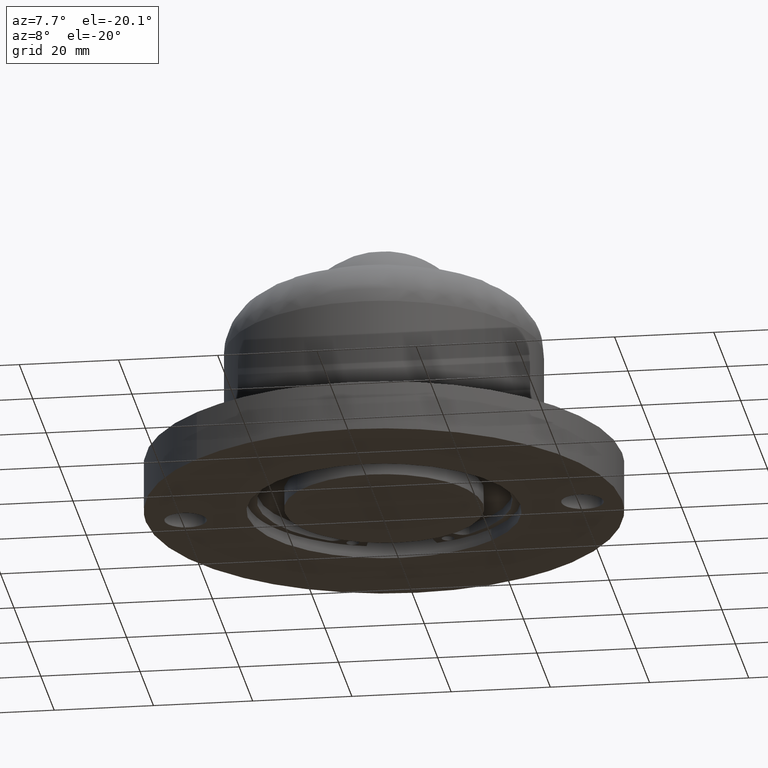
[diagram: clean part render]
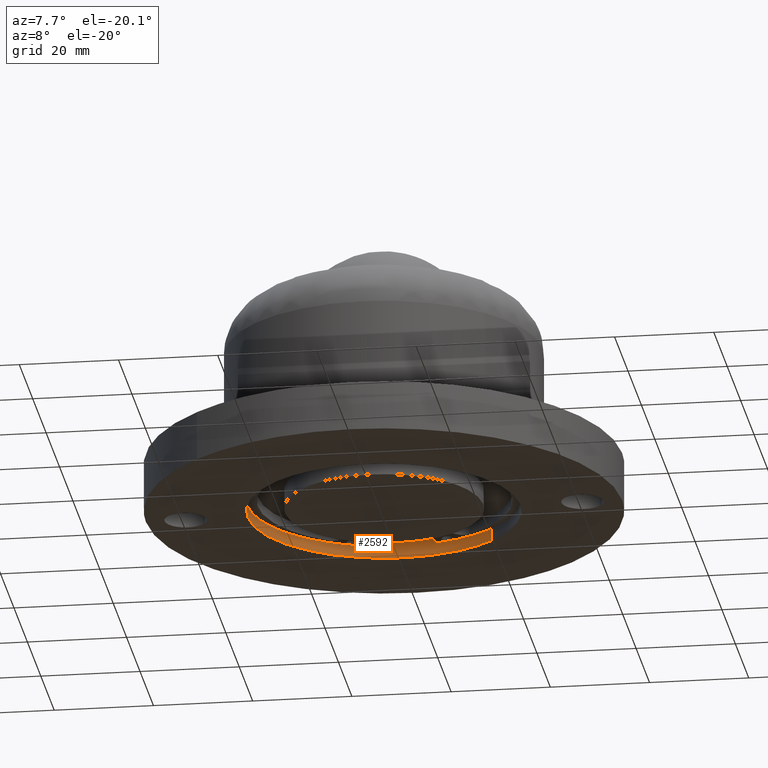
[diagram: same view with one face highlighted and labeled with its STEP entity id]
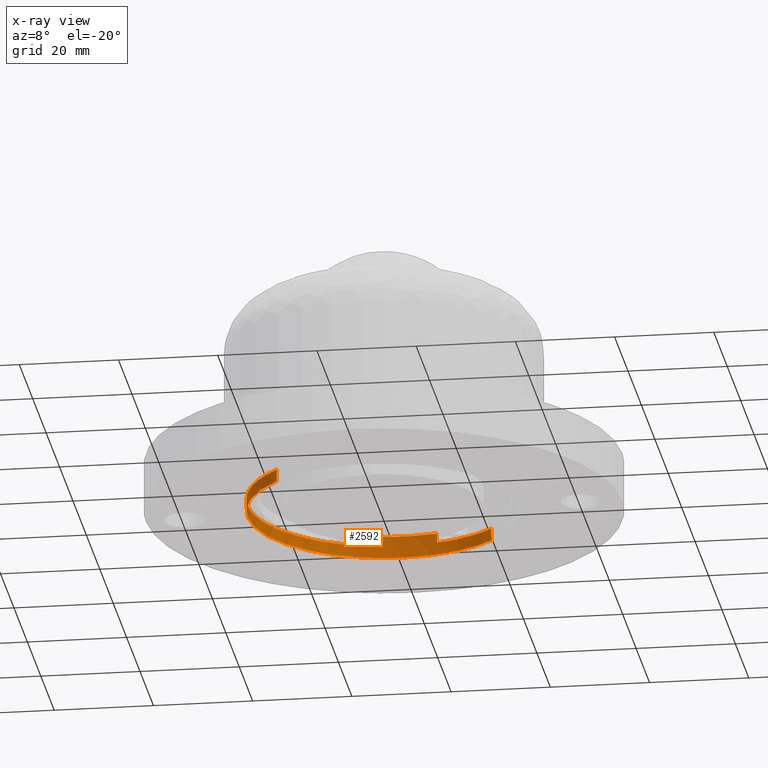
[diagram: x-ray of the same camera — body ghosted, the highlighted face saturated]
A machine part, auxiliary view. The second image highlights one B-rep face of the part: STEP entity #2592.
The next image is the same camera in x-ray: the body ghosted, the highlighted face saturated — about 0% of this face is hidden behind the body in this view.
In plain terms, the highlighted face is a freeform B-spline surface patch.
Its self-contained STEP definition (entity closure, byte-faithful):
#1989=CARTESIAN_POINT('',(-27.500000000000000,0.0,-3.256654E-014));
#1990=VERTEX_POINT('',#1989);
#1991=CARTESIAN_POINT('',(0.0,27.500000000000000,-3.256654E-014));
#1992=VERTEX_POINT('',#1991);
#1993=CARTESIAN_POINT('',(-27.500000000000000,0.0,-3.256654E-014));
#1994=CARTESIAN_POINT('',(-27.500136091290670,1.574893491431788,-3.349915E-014));
#1995=CARTESIAN_POINT('',(-27.272265872444869,4.218405304826245,-3.492949E-014));
#1996=CARTESIAN_POINT('',(-26.475523065169771,7.619510286225300,-3.647159E-014));
#1997=CARTESIAN_POINT('',(-25.477593940418789,10.491585376311280,-3.758130E-014));
#1998=CARTESIAN_POINT('',(-23.959813031501909,13.700990718824981,-3.858295E-014));
#1999=CARTESIAN_POINT('',(-21.858409516135911,16.845892941677668,-3.920082E-014));
#2000=CARTESIAN_POINT('',(-19.218775001687280,19.776219523096788,-3.937295E-014));
#2001=CARTESIAN_POINT('',(-16.821489669604379,21.831323224687551,-3.917033E-014));
#2002=CARTESIAN_POINT('',(-14.071055876019750,23.693613094670241,-3.864445E-014));
#2003=CARTESIAN_POINT('',(-11.128163675767100,25.243538092553131,-3.781964E-014));
#2004=CARTESIAN_POINT('',(-8.052314614706971,26.354706646549911,-3.665632E-014));
#2005=CARTESIAN_POINT('',(-4.330845437063456,27.250578366005001,-3.498323E-014));
#2006=CARTESIAN_POINT('',(-1.799888557177577,27.500254873035281,-3.363244E-014));
#2007=CARTESIAN_POINT('',(0.0,27.500000000000000,-3.256654E-014));
#2008=B_SPLINE_CURVE_WITH_KNOTS('',3,(#1993,#1994,#1995,#1996,#1997,#1998,#1999,#2000,#2001,#2002,#2003,#2004,#2005,#2006,#2007),.UNSPECIFIED.,.F.,.U.,(4,1,1,1,1,1,1,1,1,1,1,1,4),(0.000000068253144,4.724660713374789,7.930689920747128,10.461765799373801,13.836545072205730,18.561236577346449,21.767178142539919,25.648165330202691,28.010532263260981,31.722773202107732,35.603763817969920,37.797371074607803,43.196966750257197),.UNSPECIFIED.);
#2009=EDGE_CURVE('',#1990,#1992,#2008,.T.);
#2011=CARTESIAN_POINT('',(-18.929750866438241,-19.947795169756990,-3.905285E-014));
#2012=VERTEX_POINT('',#2011);
#2013=CARTESIAN_POINT('',(-18.929750866438241,-19.947795169756990,-3.905285E-014));
#2014=CARTESIAN_POINT('',(-19.857285370248778,-19.067659777777259,-3.909197E-014));
#2015=CARTESIAN_POINT('',(-21.786138080941839,-16.962948260837180,-3.901428E-014));
#2016=CARTESIAN_POINT('',(-23.949264665280051,-13.707774882040530,-3.840854E-014));
#2017=CARTESIAN_POINT('',(-25.423984564866561,-10.605738113673260,-3.748394E-014));
#2018=CARTESIAN_POINT('',(-26.400627058285011,-7.865693141178451,-3.647421E-014));
#2019=CARTESIAN_POINT('',(-27.248033784097320,-4.417125668327881,-3.497733E-014));
#2020=CARTESIAN_POINT('',(-27.500181527055179,-1.685517485021279,-3.354351E-014));
#2021=CARTESIAN_POINT('',(-27.500000000000000,0.0,-3.256654E-014));
#2022=B_SPLINE_CURVE_WITH_KNOTS('',3,(#2013,#2014,#2015,#2016,#2017,#2018,#2019,#2020,#2021),.UNSPECIFIED.,.F.,.U.,(4,1,1,1,1,1,4),(0.000000020180014,3.835972124333061,8.543790821970839,11.682295093550470,14.123383697526140,17.261917181206229,22.318435145840279),.UNSPECIFIED.);
#2023=EDGE_CURVE('',#2012,#1990,#2022,.T.);
#2058=CARTESIAN_POINT('',(18.929750866438251,19.947795169756990,-1.708890E-014));
#2059=VERTEX_POINT('',#2058);
#2072=CARTESIAN_POINT('',(0.0,27.500000000000000,-3.256654E-014));
#2073=CARTESIAN_POINT('',(1.087419726836964,27.500020452163099,-3.193432E-014));
#2074=CARTESIAN_POINT('',(3.479752411302024,27.357957890523839,-3.045929E-014));
#2075=CARTESIAN_POINT('',(6.745076731581240,26.730637713180201,-2.818937E-014));
#2076=CARTESIAN_POINT('',(10.217172134990760,25.613082212452220,-2.550895E-014));
#2077=CARTESIAN_POINT('',(12.932165735302791,24.338510385853539,-2.317575E-014));
#2078=CARTESIAN_POINT('',(16.036661655699831,22.428147431134661,-2.023962E-014));
#2079=CARTESIAN_POINT('',(17.786106975915839,21.033289307000111,-1.839656E-014));
#2080=CARTESIAN_POINT('',(18.929750866438251,19.947795169756990,-1.708890E-014));
#2081=B_SPLINE_CURVE_WITH_KNOTS('',3,(#2072,#2073,#2074,#2075,#2076,#2077,#2078,#2079,#2080),.UNSPECIFIED.,.F.,.U.,(4,1,1,1,1,1,4),(0.000000017875028,3.262265744154004,7.177000197796149,9.949927358694536,14.190874260118219,16.148239779211501,20.878531830276309),.UNSPECIFIED.);
#2082=EDGE_CURVE('',#1992,#2059,#2081,.T.);
#2454=CARTESIAN_POINT('',(18.929750873641211,19.947795162921619,2.499999999999963));
#2455=VERTEX_POINT('',#2454);
#2481=CARTESIAN_POINT('',(18.929750873641211,19.947795162921619,2.499999999999963));
#2482=CARTESIAN_POINT('',(18.929750866438251,19.947795169756990,-1.708890E-014));
#2483=QUASI_UNIFORM_CURVE('',1,(#2481,#2482),.UNSPECIFIED.,.F.,.U.);
#2484=EDGE_CURVE('',#2455,#2059,#2483,.T.);
#2489=CARTESIAN_POINT('',(-18.929750852936682,-19.947795182569489,2.499999999999896));
#2490=VERTEX_POINT('',#2489);
#2491=CARTESIAN_POINT('',(-18.929750852936682,-19.947795182569489,2.499999999999896));
#2492=CARTESIAN_POINT('',(-18.929750866438241,-19.947795169756990,-3.905285E-014));
#2493=QUASI_UNIFORM_CURVE('',1,(#2491,#2492),.UNSPECIFIED.,.F.,.U.);
#2494=EDGE_CURVE('',#2490,#2012,#2493,.T.);
#2510=CARTESIAN_POINT('',(-18.929750831578211,-19.947795202837920,4.612500000000001));
#2511=CARTESIAN_POINT('',(-38.877546034416135,-1.018044371259705,4.612500000000001));
#2512=CARTESIAN_POINT('',(-19.947795202837920,18.929750831578211,4.612500000000001));
#2513=CARTESIAN_POINT('',(-1.018044371259705,38.877546034416135,4.612500000000001));
#2514=CARTESIAN_POINT('',(18.929750831578211,19.947795202837920,4.612500000000001));
#2515=CARTESIAN_POINT('',(-18.929750831578211,-19.947795202837920,-0.115312500000040));
#2516=CARTESIAN_POINT('',(-38.877546034416135,-1.018044371259705,-0.115312500000040));
#2517=CARTESIAN_POINT('',(-19.947795202837920,18.929750831578211,-0.115312500000040));
#2518=CARTESIAN_POINT('',(-1.018044371259705,38.877546034416135,-0.115312500000040));
#2519=CARTESIAN_POINT('',(18.929750831578211,19.947795202837920,-0.115312500000040));
#2527=(BOUNDED_SURFACE()B_SPLINE_SURFACE(2,1,((#2510,#2515),(#2511,#2516),(#2512,#2517),(#2513,#2518),(#2514,#2519)),.UNSPECIFIED.,.F.,.F.,.U.)B_SPLINE_SURFACE_WITH_KNOTS((3,2,3),(2,2),(0.0,45.563491861040447,91.126983722080894),(0.0,4.727812500000041),.UNSPECIFIED.)GEOMETRIC_REPRESENTATION_ITEM()RATIONAL_B_SPLINE_SURFACE(((1.0,1.0),(0.707106781186548,0.707106781186548),(1.0,1.0),(0.707106781186548,0.707106781186548),(1.0,1.0)))REPRESENTATION_ITEM('')SURFACE());
#2528=CARTESIAN_POINT('',(7.117523740319340,26.562960222949350,2.499999999999965));
#2529=VERTEX_POINT('',#2528);
#2530=CARTESIAN_POINT('',(7.117523740319340,26.562960222949350,2.499999999999965));
#2531=CARTESIAN_POINT('',(8.769189439392150,26.120568537737579,2.499999999999964));
#2532=CARTESIAN_POINT('',(11.922440093080390,24.951186851660569,2.499999999999970));
#2533=CARTESIAN_POINT('',(15.854304637718140,22.606483678336019,2.499999999999949));
#2534=CARTESIAN_POINT('',(18.051221440187149,20.781520117496559,2.499999999999980));
#2535=CARTESIAN_POINT('',(18.929750873641211,19.947795162921619,2.499999999999963));
#2536=B_SPLINE_CURVE_WITH_KNOTS('',3,(#2530,#2531,#2532,#2533,#2534,#2535),.UNSPECIFIED.,.F.,.U.,(4,1,1,4),(5.473476E-009,5.129644917748776,10.045553845637601,13.679052499007060),.UNSPECIFIED.);
#2537=EDGE_CURVE('',#2529,#2455,#2536,.T.);
#2538=ORIENTED_EDGE('',*,*,#2537,.F.);
#2539=CARTESIAN_POINT('',(7.117523740319340,26.562960222949400,4.500000000000000));
#2540=VERTEX_POINT('',#2539);
#2541=CARTESIAN_POINT('',(7.117523740319340,26.562960222949350,2.499999999999965));
#2542=CARTESIAN_POINT('',(7.117523740319340,26.562960222949400,4.500000000000000));
#2543=QUASI_UNIFORM_CURVE('',1,(#2541,#2542),.UNSPECIFIED.,.F.,.U.);
#2544=EDGE_CURVE('',#2529,#2540,#2543,.T.);
#2545=ORIENTED_EDGE('',*,*,#2544,.T.);
#2546=CARTESIAN_POINT('',(-7.117523740319340,26.562960222949350,4.500000000000000));
#2547=VERTEX_POINT('',#2546);
#2548=CARTESIAN_POINT('',(-7.117523740319340,26.562960222949350,4.500000000000000));
#2549=CARTESIAN_POINT('',(-6.030942061231814,26.854136250887180,4.500000000000006));
#2550=CARTESIAN_POINT('',(-3.601096787808912,27.347796438976189,4.499999999999996));
#2551=CARTESIAN_POINT('',(0.075718939041916,27.588834366808069,4.500000000000001));
#2552=CARTESIAN_POINT('',(3.748352887310865,27.317846434655241,4.500000000000003));
#2553=CARTESIAN_POINT('',(6.030942768352403,26.854141757623520,4.499999999999995));
#2554=CARTESIAN_POINT('',(7.117523740319340,26.562960222949400,4.500000000000000));
#2555=B_SPLINE_CURVE_WITH_KNOTS('',3,(#2548,#2549,#2550,#2551,#2552,#2553,#2554),.UNSPECIFIED.,.F.,.U.,(4,1,1,1,4),(5.447671E-009,3.374765961586224,7.424481913429049,11.024240528438829,14.399006484577320),.UNSPECIFIED.);
#2556=EDGE_CURVE('',#2547,#2540,#2555,.T.);
#2557=ORIENTED_EDGE('',*,*,#2556,.F.);
#2558=CARTESIAN_POINT('',(-7.117523740319340,26.562960222949400,2.499999999999945));
#2559=VERTEX_POINT('',#2558);
#2560=CARTESIAN_POINT('',(-7.117523740319340,26.562960222949400,2.499999999999945));
#2561=CARTESIAN_POINT('',(-7.117523740319340,26.562960222949350,4.500000000000000));
#2562=QUASI_UNIFORM_CURVE('',1,(#2560,#2561),.UNSPECIFIED.,.F.,.U.);
#2563=EDGE_CURVE('',#2559,#2547,#2562,.T.);
#2564=ORIENTED_EDGE('',*,*,#2563,.F.);
#2565=CARTESIAN_POINT('',(-18.929750852936682,-19.947795182569489,2.499999999999896));
#2566=CARTESIAN_POINT('',(-20.031413357366478,-18.902527958998981,2.499999999999886));
#2567=CARTESIAN_POINT('',(-21.756377535086258,-16.969815813411710,2.499999999999906));
#2568=CARTESIAN_POINT('',(-23.865651058252119,-13.805368784990190,2.499999999999870));
#2569=CARTESIAN_POINT('',(-25.499343620558442,-10.538297517524780,2.499999999999891));
#2570=CARTESIAN_POINT('',(-26.731415361929969,-6.855605454001926,2.499999999999876));
#2571=CARTESIAN_POINT('',(-27.499289994113511,-2.585186103154796,2.499999999999889));
#2572=CARTESIAN_POINT('',(-27.567863404426859,1.607852269954642,2.499999999999874));
#2573=CARTESIAN_POINT('',(-26.936775648170141,6.053135341853657,2.499999999999893));
#2574=CARTESIAN_POINT('',(-25.897773366556990,9.481422141410793,2.499999999999882));
#2575=CARTESIAN_POINT('',(-24.245592077298252,13.154857324575991,2.499999999999889));
#2576=CARTESIAN_POINT('',(-22.356630908931759,16.200204243739758,2.499999999999910));
#2577=CARTESIAN_POINT('',(-19.683460767389111,19.319857779545540,2.499999999999866));
#2578=CARTESIAN_POINT('',(-16.563289443621620,22.111378724857211,2.499999999999935));
#2579=CARTESIAN_POINT('',(-12.373537401661480,24.762378392603299,2.499999999999962));
#2580=CARTESIAN_POINT('',(-8.951227647172477,26.071915053204830,2.499999999999885));
#2581=CARTESIAN_POINT('',(-7.117523740319340,26.562960222949400,2.499999999999945));
#2582=B_SPLINE_CURVE_WITH_KNOTS('',3,(#2565,#2566,#2567,#2568,#2569,#2570,#2571,#2572,#2573,#2574,#2575,#2576,#2577,#2578,#2579,#2580,#2581),.UNSPECIFIED.,.F.,.U.,(4,1,1,1,1,1,1,1,1,1,1,1,1,1,4),(0.000000014331334,4.555884684772849,7.745060924508607,11.389838717597600,15.490188462424710,19.362742650637511,24.374296501419519,28.019029377965591,32.802691279535047,35.080671670945620,40.092233638395498,43.509188339910352,47.381751925665263,52.621084066471958,58.315980324288901),.UNSPECIFIED.);
#2583=EDGE_CURVE('',#2490,#2559,#2582,.T.);
#2584=ORIENTED_EDGE('',*,*,#2583,.F.);
#2585=ORIENTED_EDGE('',*,*,#2494,.T.);
#2586=ORIENTED_EDGE('',*,*,#2023,.T.);
#2587=ORIENTED_EDGE('',*,*,#2009,.T.);
#2588=ORIENTED_EDGE('',*,*,#2082,.T.);
#2589=ORIENTED_EDGE('',*,*,#2484,.F.);
#2590=EDGE_LOOP('',(#2538,#2545,#2557,#2564,#2584,#2585,#2586,#2587,#2588,#2589));
#2591=FACE_OUTER_BOUND('',#2590,.T.);
#2592=ADVANCED_FACE('',(#2591),#2527,.F.);